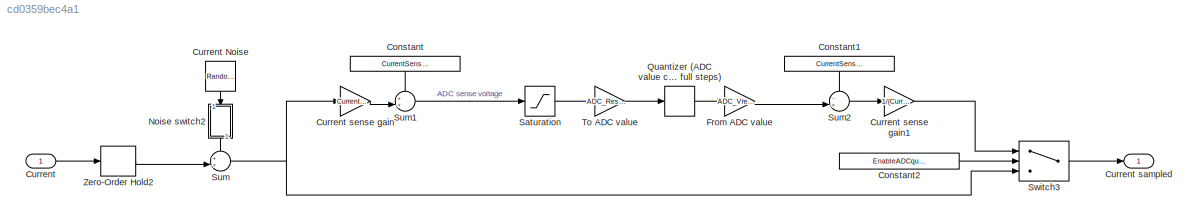
MODEL slx_cd0359bec4a1
KIND model
CONFIG AbsTol = auto
CONFIG EnableMultiTasking = off
CONFIG FixedStep = auto
CONFIG InitFcn = Parameters_Model\nParameters_Simulation\nParameters_Estimators
CONFIG MaxStep = auto
CONFIG MinStep = auto
CONFIG PreLoadFcn = modelDir = fileparts(get_param(bdroot, 'FileName'));\naddpath(fullfile(modelDir,'Parameters'));\naddpath(fullfile(modelDir,'subsystems'));\n\nParameters_Model\nParameters_Simulation\nParameters_Estimators
CONFIG RelTol = 1e-3
CONFIG SampleTimeConstraint = Unconstrained
CONFIG Solver = VariableStepAuto
CONFIG SolverName = VariableStepAuto
CONFIG StartTime = 0.0
CONFIG StopTime = 10.0
BLOCK [Constant] Constant
  Value = CurrentSense_Voffset
BLOCK [Constant] Constant1
  Value = CurrentSense_Voffset
BLOCK [Constant] Constant2
  Value = EnableADCquantization
BLOCK [Inport] Current
  IconDisplay = Port number
BLOCK [RandomNumber] Current Noise
  SampleTime = Ts_current
  Seed = 11
  Variance = sensor_sigma2_current_sense
BLOCK [Outport] Current sampled
  IconDisplay = Port number
  VectorParamsAs1DForOutWhenUnconnected = off
BLOCK [Gain] Current sense gain
  Gain = CurrentSense_G*CurrentSense_Rsense
  OutDataTypeStr = Inherit: Inherit via internal rule
  ParamDataTypeStr = Inherit: Inherit via internal rule
  SaturateOnIntegerOverflow = off
BLOCK [Gain] Current sense gain1
  Gain = 1/(CurrentSense_G*CurrentSense_Rsense)
  OutDataTypeStr = Inherit: Inherit via internal rule
  ParamDataTypeStr = Inherit: Inherit via internal rule
  SaturateOnIntegerOverflow = off
BLOCK [Gain] From ADC value
  Gain = ADC_Vref/ADC_Resolution
  OutDataTypeStr = Inherit: Inherit via internal rule
  ParamDataTypeStr = Inherit: Inherit via internal rule
  SaturateOnIntegerOverflow = off
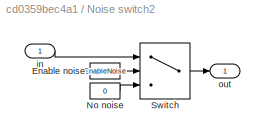
BLOCK [SubSystem] Noise switch2
  Ports = [1, 1]
  RequestExecContextInheritance = off
BLOCK [Constant] Noise switch2/Enable noise
  Value = EnableNoise
BLOCK [Constant] Noise switch2/No noise
  Value = 0
BLOCK [Switch] Noise switch2/Switch
  Criteria = u2 > Threshold
  InputSameDT = off
  SaturateOnIntegerOverflow = off
BLOCK [Inport] Noise switch2/in
  IconDisplay = Port number
BLOCK [Outport] Noise switch2/out
  IconDisplay = Port number
  VectorParamsAs1DForOutWhenUnconnected = off
BLOCK [Quantizer] Quantizer (ADC value can only be measured in full steps)
  QuantizationInterval = 1
BLOCK [Saturate] Saturation
  InputPortMap = u0
  LowerLimit = 0
  Ports = [1, 1]
  UpperLimit = ADC_Vref
BLOCK [Sum] Sum
  IconShape = round
  InputSameDT = off
  Inputs = ++|
  OutDataTypeStr = Inherit: Inherit via internal rule
  Ports = [2, 1]
  SaturateOnIntegerOverflow = off
BLOCK [Sum] Sum1
  IconShape = round
  InputSameDT = off
  Inputs = ++|
  OutDataTypeStr = Inherit: Inherit via internal rule
  Ports = [2, 1]
  SaturateOnIntegerOverflow = off
BLOCK [Sum] Sum2
  IconShape = round
  InputSameDT = off
  Inputs = -+|
  OutDataTypeStr = Inherit: Inherit via internal rule
  Ports = [2, 1]
  SaturateOnIntegerOverflow = off
BLOCK [Switch] Switch3
  Criteria = u2 ~= 0
  InputSameDT = off
  SaturateOnIntegerOverflow = off
BLOCK [Gain] To ADC value
  Gain = ADC_Resolution/ADC_Vref
  OutDataTypeStr = Inherit: Inherit via internal rule
  ParamDataTypeStr = Inherit: Inherit via internal rule
  SaturateOnIntegerOverflow = off
BLOCK [ZeroOrderHold] Zero-Order Hold2
  SampleTime = Ts_current
LINE Constant1:1 -> Sum2:1
LINE Constant2:1 -> Switch3:2
LINE Constant:1 -> Sum1:1
LINE Current Noise:1 -> Noise switch2:1
LINE Current sense gain1:1 -> Switch3:1
LINE Current sense gain:1 -> Sum1:2
LINE Current:1 -> Zero-Order Hold2:1
LINE From ADC value:1 -> Sum2:2
LINE Noise switch2/Enable noise:1 -> Noise switch2/Switch:2
LINE Noise switch2/No noise:1 -> Noise switch2/Switch:3
LINE Noise switch2/Switch:1 -> Noise switch2/out:1
LINE Noise switch2/in:1 -> Noise switch2/Switch:1
LINE Noise switch2:1 -> Sum:1
LINE Quantizer (ADC value can only be measured in full steps):1 -> From ADC value:1
LINE Saturation:1 -> To ADC value:1
LINE Sum1:1 -> Saturation:1
LINE Sum2:1 -> Current sense gain1:1
NET Sum:1 -> Current sense gain:1, Switch3:3
LINE Switch3:1 -> Current sampled:1
LINE To ADC value:1 -> Quantizer (ADC value can only be measured in full steps):1
LINE Zero-Order Hold2:1 -> Sum:2
note: NET lines group one-source signal fan-out (src -> all destinations, sorted); 1:1 wires keep LINE
